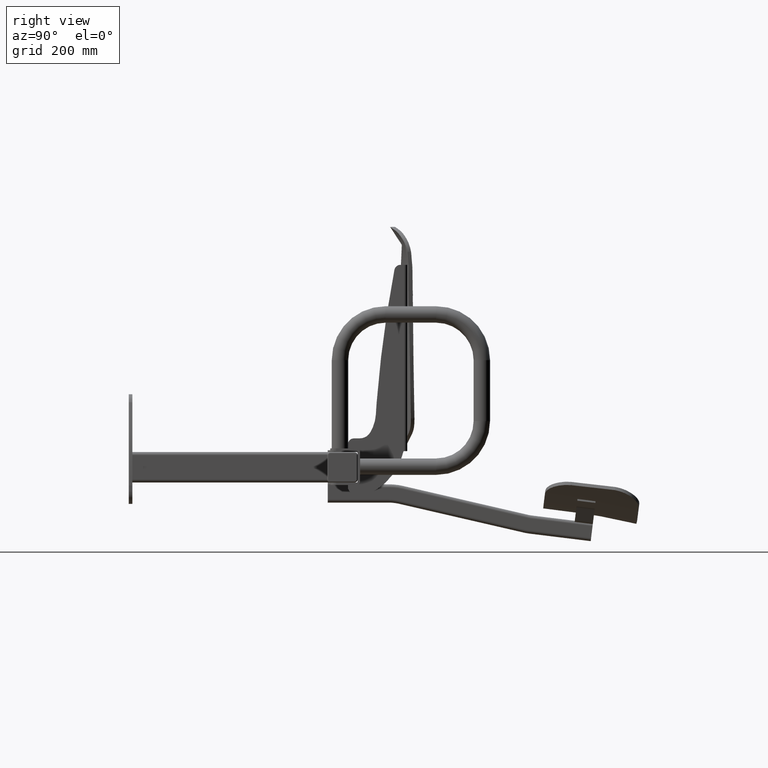
[diagram: clean part render]
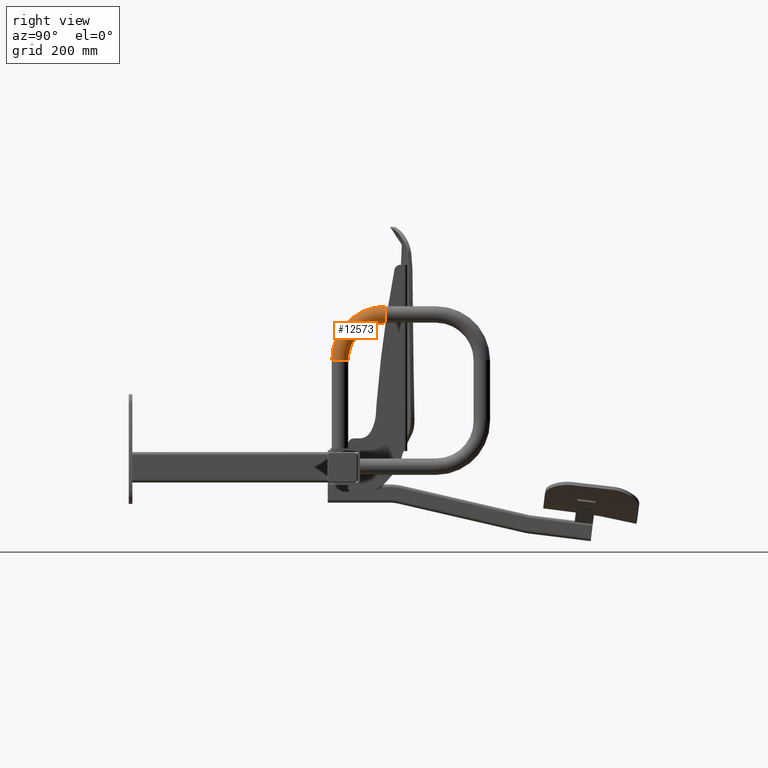
[diagram: same view with one face highlighted and labeled with its STEP entity id]
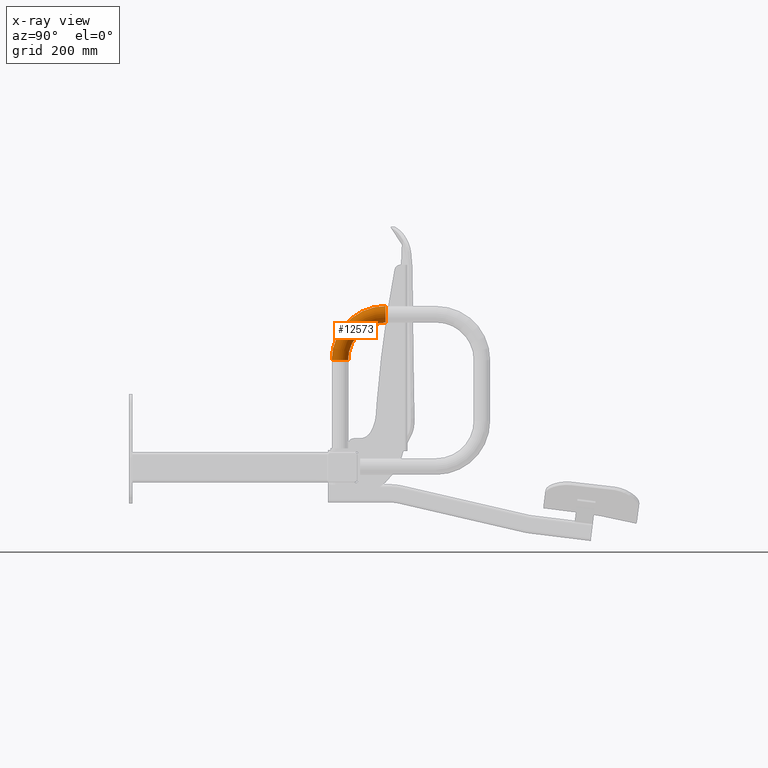
[diagram: x-ray of the same camera — body ghosted, the highlighted face saturated]
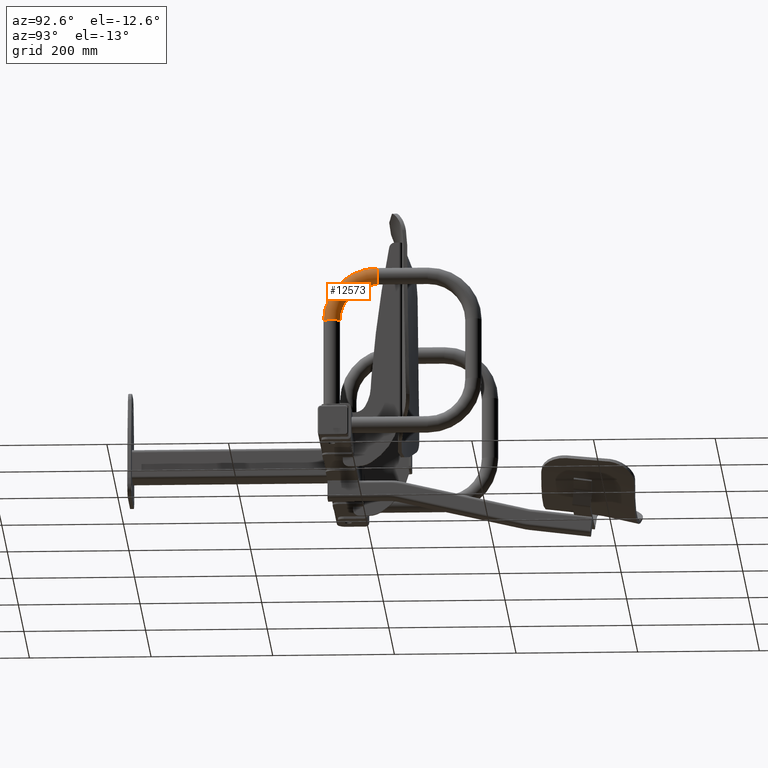
[diagram: same view with one face highlighted and labeled with its STEP entity id]
A machine part, right view. The second image highlights one B-rep face of the part: STEP entity #12573.
The next image is the same camera in x-ray: the body ghosted, the highlighted face saturated — about 0% of this face is hidden behind the body in this view.
A second angle (auxiliary view) of the same face is appended — the face is thin or edge-on in the first view.
In plain terms, the highlighted toroidal blend (fillet) surface has major radius 75 mm and minor (blend) radius 13.5 mm.
Its self-contained STEP definition (entity closure, byte-faithful):
#456 = AXIS2_PLACEMENT_3D ( 'NONE', #4383, #4382, #4385 ) ;
#1806 = EDGE_LOOP ( 'NONE', ( #7552, #7551, #7550, #7549 ) ) ;
#3737 = EDGE_CURVE ( 'NONE', #13150, #5294, #6514, .T. ) ;
#3738 = EDGE_CURVE ( 'NONE', #5294, #13163, #6516, .T. ) ;
#3739 = EDGE_CURVE ( 'NONE', #13186, #13163, #6519, .T. ) ;
#3740 = EDGE_CURVE ( 'NONE', #13150, #13186, #6518, .T. ) ;
#4382 = DIRECTION ( 'NONE',  ( 1.000000000000000000, 0.0000000000000000000, 0.0000000000000000000 ) ) ;
#4383 = CARTESIAN_POINT ( 'NONE',  ( 0.0000000000000000000, 45.99999999999998600, 175.0000000000000000 ) ) ;
#4385 = DIRECTION ( 'NONE',  ( 0.0000000000000000000, 0.0000000000000000000, -1.000000000000000000 ) ) ;
#4796 = CARTESIAN_POINT ( 'NONE',  ( 0.0000000000000000000, 46.00000000000086700, 236.4999999999999700 ) ) ;
#4809 = CARTESIAN_POINT ( 'NONE',  ( 1.653273178848927300E-015, -42.49999999999999300, 174.9999999999989200 ) ) ;
#4832 = CARTESIAN_POINT ( 'NONE',  ( 0.0000000000000000000, -15.49999999999999800, 175.0000000000000300 ) ) ;
#5294 = VERTEX_POINT ( 'NONE', #15556 ) ;
#6514 = CIRCLE ( 'NONE', #14109, 13.50000000000001200 ) ;
#6516 = CIRCLE ( 'NONE', #14110, 88.49999999999998600 ) ;
#6518 = CIRCLE ( 'NONE', #14112, 61.49999999999998600 ) ;
#6519 = CIRCLE ( 'NONE', #14111, 13.50000000000000000 ) ;
#7549 = ORIENTED_EDGE ( 'NONE', *, *, #3740, .F. ) ;
#7550 = ORIENTED_EDGE ( 'NONE', *, *, #3739, .F. ) ;
#7551 = ORIENTED_EDGE ( 'NONE', *, *, #3738, .T. ) ;
#7552 = ORIENTED_EDGE ( 'NONE', *, *, #3737, .T. ) ;
#12573 = ADVANCED_FACE ( 'NONE', ( #13311 ), #13302, .T. ) ;
#13150 = VERTEX_POINT ( 'NONE', #4796 ) ;
#13163 = VERTEX_POINT ( 'NONE', #4809 ) ;
#13186 = VERTEX_POINT ( 'NONE', #4832 ) ;
#13302 = TOROIDAL_SURFACE ( 'NONE', #456, 74.99999999999998600, 13.50000000000000000 ) ;
#13311 = FACE_OUTER_BOUND ( 'NONE', #1806, .T. ) ;
#14109 = AXIS2_PLACEMENT_3D ( 'NONE', #22599, #22600, #22601 ) ;
#14110 = AXIS2_PLACEMENT_3D ( 'NONE', #22603, #22604, #22605 ) ;
#14111 = AXIS2_PLACEMENT_3D ( 'NONE', #22606, #22607, #22608 ) ;
#14112 = AXIS2_PLACEMENT_3D ( 'NONE', #22609, #22610, #22611 ) ;
#15556 = CARTESIAN_POINT ( 'NONE',  ( 1.653273178848928800E-015, 46.00000000000012800, 263.4999999999999400 ) ) ;
#22599 = CARTESIAN_POINT ( 'NONE',  ( 0.0000000000000000000, 46.00000000000049700, 249.9999999999999700 ) ) ;
#22600 = DIRECTION ( 'NONE',  ( 0.0000000000000000000, -1.000000000000000000, -2.741106633078914700E-014 ) ) ;
#22601 = DIRECTION ( 'NONE',  ( 0.0000000000000000000, 2.724158347459872400E-014, -1.000000000000000000 ) ) ;
#22603 = CARTESIAN_POINT ( 'NONE',  ( 0.0000000000000000000, 45.99999999999998600, 175.0000000000000000 ) ) ;
#22604 = DIRECTION ( 'NONE',  ( 1.000000000000000000, 0.0000000000000000000, 0.0000000000000000000 ) ) ;
#22605 = DIRECTION ( 'NONE',  ( 0.0000000000000000000, 0.0000000000000000000, -1.000000000000000000 ) ) ;
#22606 = CARTESIAN_POINT ( 'NONE',  ( 0.0000000000000000000, -28.99999999999999600, 174.9999999999994600 ) ) ;
#22607 = DIRECTION ( 'NONE',  ( 0.0000000000000000000, 4.133864410110875200E-014, -1.000000000000000000 ) ) ;
#22608 = DIRECTION ( 'NONE',  ( 0.0000000000000000000, 1.000000000000000000, 4.111937128241320600E-014 ) ) ;
#22609 = CARTESIAN_POINT ( 'NONE',  ( -1.653273178848926900E-015, 45.99999999999998600, 175.0000000000000000 ) ) ;
#22610 = DIRECTION ( 'NONE',  ( 1.000000000000000000, 0.0000000000000000000, 0.0000000000000000000 ) ) ;
#22611 = DIRECTION ( 'NONE',  ( 0.0000000000000000000, 0.0000000000000000000, -1.000000000000000000 ) ) ;